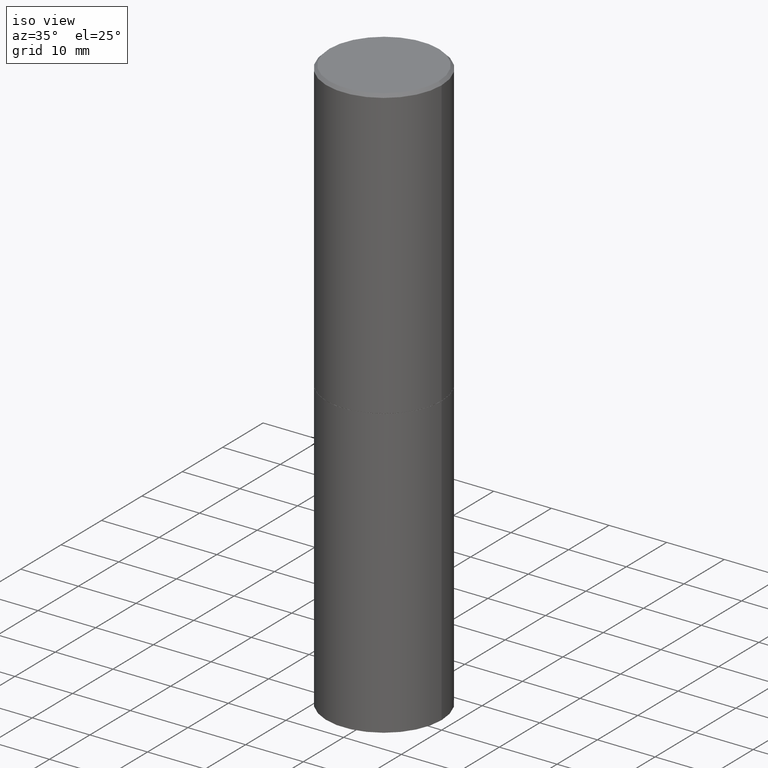
[diagram: clean part render]
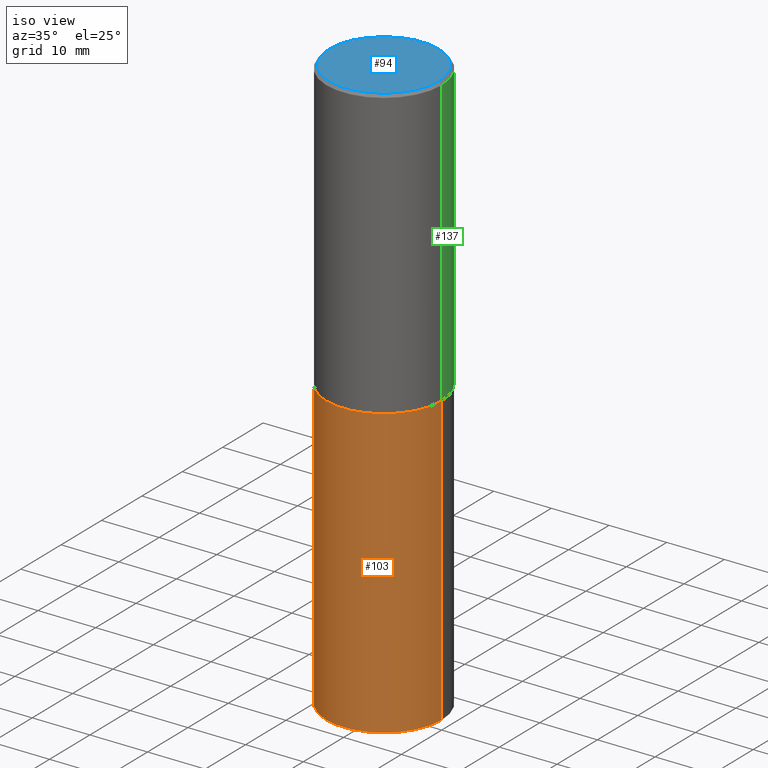
[diagram: same view with three faces highlighted in distinct colors, each labeled with its STEP entity id]
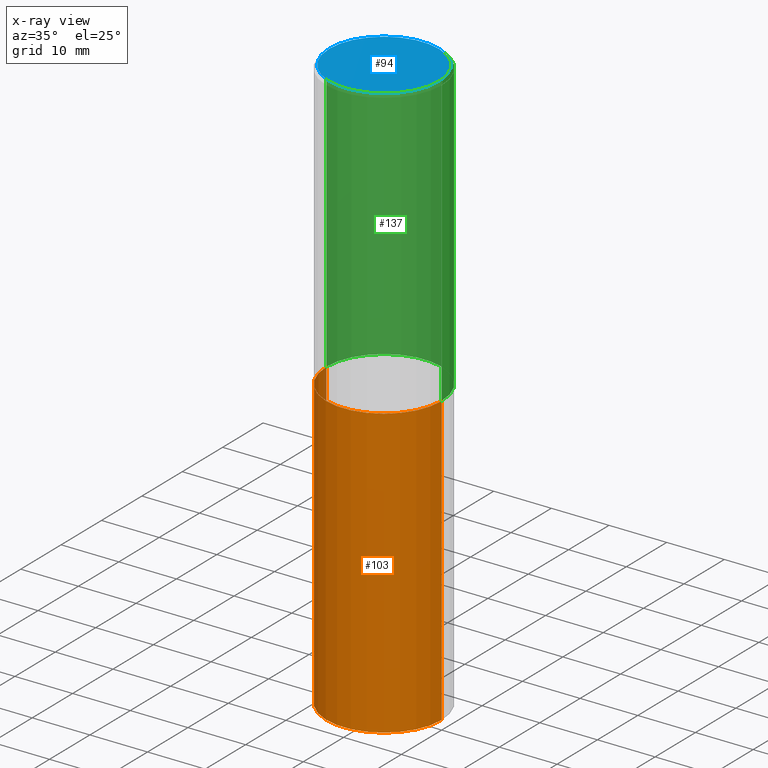
[diagram: x-ray of the same camera — body ghosted, the three highlighted faces saturated]
A machine part, iso view with three faces highlighted in distinct colors.
The next image is the same camera in x-ray (body ghosted, the three faces saturated) — at least one of them is partly hidden behind the body in this view.
Their STEP definitions:

[orange] entity #103 — the highlighted cylindrical surface (partial cylindrical patch) has radius 10 mm, axis along (-0, 0, 1).
#8 = DIRECTION ( 'NONE',  ( -2.445468806185136597E-29, 3.491481338843145583E-15, 1.000000000000000000 ) ) ;
#41 = CARTESIAN_POINT ( 'NONE',  ( 4.813905344975441835E-29, -6.872981015512731707E-15, -1.968500000000000139 ) ) ;
#58 = DIRECTION ( 'NONE',  ( 1.000000000000000000, -6.982962677686265922E-15, 4.876176775795935793E-29 ) ) ;
#62 = DIRECTION ( 'NONE',  ( 1.000000000000000000, -6.982962677686265133E-15, 0.000000000000000000 ) ) ;
#68 = DIRECTION ( 'NONE',  ( -2.445468806185136877E-29, 3.491481338843145188E-15, 1.000000000000000000 ) ) ;
#79 = CIRCLE ( 'NONE', #187, 0.3937000000000000499 ) ;
#83 = CYLINDRICAL_SURFACE ( 'NONE', #128, 0.3937000000000000499 ) ;
#93 = CARTESIAN_POINT ( 'NONE',  ( 0.3937000000000000499, -9.622173421717814924E-15, -1.968500000000000139 ) ) ;
#98 = EDGE_CURVE ( 'NONE', #246, #131, #79, .T. ) ;
#103 = ADVANCED_FACE ( 'NONE', ( #200 ), #83, .T. ) ;
#120 = CARTESIAN_POINT ( 'NONE',  ( 9.627810689950883669E-29, -1.374596203102546341E-14, -3.937000000000000277 ) ) ;
#128 = AXIS2_PLACEMENT_3D ( 'NONE', #171, #191, #58 ) ;
#129 = EDGE_CURVE ( 'NONE', #347, #136, #326, .T. ) ;
#131 = VERTEX_POINT ( 'NONE', #93 ) ;
#136 = VERTEX_POINT ( 'NONE', #318 ) ;
#159 = VECTOR ( 'NONE', #68, 39.37007874015748143 ) ;
#163 = ORIENTED_EDGE ( 'NONE', *, *, #129, .T. ) ;
#164 = EDGE_CURVE ( 'NONE', #347, #246, #349, .T. ) ;
#171 = CARTESIAN_POINT ( 'NONE',  ( 0.000000000000000000, 0.000000000000000000, 0.000000000000000000 ) ) ;
#178 = CARTESIAN_POINT ( 'NONE',  ( -0.3937000000000000499, -7.512064772581583563E-15, -3.937000000000000277 ) ) ;
#187 = AXIS2_PLACEMENT_3D ( 'NONE', #41, #8, #62 ) ;
#191 = DIRECTION ( 'NONE',  ( -2.445468806185136597E-29, 3.491481338843145583E-15, 1.000000000000000000 ) ) ;
#200 = FACE_OUTER_BOUND ( 'NONE', #304, .T. ) ;
#204 = CARTESIAN_POINT ( 'NONE',  ( -0.3937000000000000499, -7.512064772581583563E-15, -1.968500000000000139 ) ) ;
#205 = DIRECTION ( 'NONE',  ( -2.445468806185136877E-29, 3.491481338843145188E-15, 1.000000000000000000 ) ) ;
#209 = ORIENTED_EDGE ( 'NONE', *, *, #98, .F. ) ;
#219 = ORIENTED_EDGE ( 'NONE', *, *, #164, .F. ) ;
#231 = DIRECTION ( 'NONE',  ( -2.445468806185136597E-29, 3.491481338843145583E-15, 1.000000000000000000 ) ) ;
#236 = CARTESIAN_POINT ( 'NONE',  ( -0.3937000000000000499, 2.797406750687514786E-15, -1.936584745033356735E-29 ) ) ;
#246 = VERTEX_POINT ( 'NONE', #204 ) ;
#282 = EDGE_CURVE ( 'NONE', #136, #131, #346, .T. ) ;
#291 = VECTOR ( 'NONE', #205, 39.37007874015748143 ) ;
#304 = EDGE_LOOP ( 'NONE', ( #219, #163, #313, #209 ) ) ;
#313 = ORIENTED_EDGE ( 'NONE', *, *, #282, .T. ) ;
#318 = CARTESIAN_POINT ( 'NONE',  ( 0.3937000000000000499, -1.649515443723054663E-14, -3.937000000000000277 ) ) ;
#321 = CARTESIAN_POINT ( 'NONE',  ( 0.3937000000000000499, -2.749192406205083217E-15, 1.919750796630860172E-29 ) ) ;
#326 = CIRCLE ( 'NONE', #356, 0.3937000000000000499 ) ;
#345 = DIRECTION ( 'NONE',  ( 1.000000000000000000, -6.982962677686267499E-15, 0.000000000000000000 ) ) ;
#346 = LINE ( 'NONE', #321, #159 ) ;
#347 = VERTEX_POINT ( 'NONE', #178 ) ;
#349 = LINE ( 'NONE', #236, #291 ) ;
#356 = AXIS2_PLACEMENT_3D ( 'NONE', #120, #231, #345 ) ;

[blue] entity #94 — the highlighted planar face has unit normal (0, -0, -1).
#6 = PLANE ( 'NONE',  #180 ) ;
#11 = DIRECTION ( 'NONE',  ( 1.000000000000000000, -6.982962677686266711E-15, 4.876212485538977921E-29 ) ) ;
#33 = DIRECTION ( 'NONE',  ( -2.445468806185136597E-29, 3.491481338843145583E-15, 1.000000000000000000 ) ) ;
#49 = CARTESIAN_POINT ( 'NONE',  ( -2.087702828670439639E-46, 2.980686340760894400E-32, 8.537024980200822558E-18 ) ) ;
#57 = ORIENTED_EDGE ( 'NONE', *, *, #189, .T. ) ;
#77 = DIRECTION ( 'NONE',  ( 1.000000000000000000, -6.982962677686266711E-15, 4.876212485538977921E-29 ) ) ;
#87 = CARTESIAN_POINT ( 'NONE',  ( 2.609533152651356226E-15, 0.3736999999999998101, -1.300498063835582617E-15 ) ) ;
#94 = ADVANCED_FACE ( 'NONE', ( #197 ), #6, .F. ) ;
#108 = VERTEX_POINT ( 'NONE', #290 ) ;
#132 = EDGE_LOOP ( 'NONE', ( #277, #57 ) ) ;
#143 = VERTEX_POINT ( 'NONE', #202 ) ;
#179 = DIRECTION ( 'NONE',  ( 2.438088387897960049E-29, -3.491481338843145188E-15, -1.000000000000000000 ) ) ;
#180 = AXIS2_PLACEMENT_3D ( 'NONE', #87, #179, #315 ) ;
#189 = EDGE_CURVE ( 'NONE', #108, #143, #274, .T. ) ;
#197 = FACE_OUTER_BOUND ( 'NONE', #132, .T. ) ;
#202 = CARTESIAN_POINT ( 'NONE',  ( -0.3736999999999998101, 2.644447966039787875E-15, 8.537024980182450727E-18 ) ) ;
#203 = AXIS2_PLACEMENT_3D ( 'NONE', #49, #33, #11 ) ;
#207 = CIRCLE ( 'NONE', #203, 0.3736999999999998101 ) ;
#238 = EDGE_CURVE ( 'NONE', #143, #108, #207, .T. ) ;
#273 = DIRECTION ( 'NONE',  ( -2.445468806185136597E-29, 3.491481338843145583E-15, 1.000000000000000000 ) ) ;
#274 = CIRCLE ( 'NONE', #348, 0.3736999999999998101 ) ;
#277 = ORIENTED_EDGE ( 'NONE', *, *, #238, .T. ) ;
#290 = CARTESIAN_POINT ( 'NONE',  ( 0.3736999999999998101, -2.667287895133366781E-15, 8.537024980219274507E-18 ) ) ;
#306 = CARTESIAN_POINT ( 'NONE',  ( -2.087702828670439639E-46, 2.980686340760894400E-32, 8.537024980200822558E-18 ) ) ;
#315 = DIRECTION ( 'NONE',  ( -1.000000000000000000, 6.982962677686265922E-15, -4.876176775795935793E-29 ) ) ;
#348 = AXIS2_PLACEMENT_3D ( 'NONE', #306, #273, #77 ) ;

[green] entity #137 — the highlighted cylindrical surface (partial cylindrical patch) has radius 10 mm, axis along (-0, 0, 1).
#2 = CARTESIAN_POINT ( 'NONE',  ( -0.3937000000000001609, -6.722528297878588461E-16, -1.967500000000000027 ) ) ;
#3 = AXIS2_PLACEMENT_3D ( 'NONE', #167, #295, #170 ) ;
#10 = VECTOR ( 'NONE', #147, 39.37007874015748143 ) ;
#20 = CARTESIAN_POINT ( 'NONE',  ( -0.3936999999999998279, 2.679362779428218735E-15, -0.02000000000000008715 ) ) ;
#28 = CIRCLE ( 'NONE', #3, 0.3937000000000001609 ) ;
#32 = VERTEX_POINT ( 'NONE', #2 ) ;
#56 = EDGE_LOOP ( 'NONE', ( #111, #355, #102, #362 ) ) ;
#64 = FACE_OUTER_BOUND ( 'NONE', #56, .T. ) ;
#66 = EDGE_CURVE ( 'NONE', #248, #32, #28, .T. ) ;
#84 = EDGE_CURVE ( 'NONE', #32, #186, #96, .T. ) ;
#91 = CARTESIAN_POINT ( 'NONE',  ( -0.3936999999999999389, 2.797406750687513998E-15, -1.936584745033356455E-29 ) ) ;
#96 = LINE ( 'NONE', #91, #268 ) ;
#102 = ORIENTED_EDGE ( 'NONE', *, *, #254, .F. ) ;
#111 = ORIENTED_EDGE ( 'NONE', *, *, #66, .T. ) ;
#137 = ADVANCED_FACE ( 'NONE', ( #64 ), #233, .T. ) ;
#141 = AXIS2_PLACEMENT_3D ( 'NONE', #335, #293, #152 ) ;
#147 = DIRECTION ( 'NONE',  ( -2.445468806185136877E-29, 3.491481338843145188E-15, 1.000000000000000000 ) ) ;
#152 = DIRECTION ( 'NONE',  ( 1.000000000000000000, -6.982962677686266711E-15, 4.876176775795935793E-29 ) ) ;
#167 = CARTESIAN_POINT ( 'NONE',  ( 4.811459876169256232E-29, -6.869489534173888700E-15, -1.967500000000000027 ) ) ;
#168 = CARTESIAN_POINT ( 'NONE',  ( 0.3937000000000001609, -9.618681940378971917E-15, -1.967500000000000027 ) ) ;
#170 = DIRECTION ( 'NONE',  ( 1.000000000000000000, -6.982962677686265922E-15, 0.000000000000000000 ) ) ;
#186 = VERTEX_POINT ( 'NONE', #20 ) ;
#198 = CARTESIAN_POINT ( 'NONE',  ( 4.890937612370294178E-31, -6.982962677686321191E-17, -0.02000000000000008715 ) ) ;
#224 = DIRECTION ( 'NONE',  ( -2.445468806185136877E-29, 3.491481338843145188E-15, 1.000000000000000000 ) ) ;
#233 = CYLINDRICAL_SURFACE ( 'NONE', #141, 0.3936999999999999389 ) ;
#235 = DIRECTION ( 'NONE',  ( -2.445468806185136597E-29, 3.491481338843145583E-15, 1.000000000000000000 ) ) ;
#248 = VERTEX_POINT ( 'NONE', #168 ) ;
#254 = EDGE_CURVE ( 'NONE', #278, #186, #297, .T. ) ;
#262 = DIRECTION ( 'NONE',  ( 1.000000000000000000, -6.982962677686266711E-15, 0.000000000000000000 ) ) ;
#268 = VECTOR ( 'NONE', #224, 39.37007874015748143 ) ;
#278 = VERTEX_POINT ( 'NONE', #285 ) ;
#285 = CARTESIAN_POINT ( 'NONE',  ( 0.3936999999999998279, -2.770807688499514156E-15, -0.02000000000000008715 ) ) ;
#293 = DIRECTION ( 'NONE',  ( -2.445468806185136597E-29, 3.491481338843145583E-15, 1.000000000000000000 ) ) ;
#295 = DIRECTION ( 'NONE',  ( -2.445468806185136597E-29, 3.491481338843145583E-15, 1.000000000000000000 ) ) ;
#297 = CIRCLE ( 'NONE', #352, 0.3936999999999998279 ) ;
#299 = EDGE_CURVE ( 'NONE', #248, #278, #312, .T. ) ;
#312 = LINE ( 'NONE', #351, #10 ) ;
#335 = CARTESIAN_POINT ( 'NONE',  ( 0.000000000000000000, 0.000000000000000000, 0.000000000000000000 ) ) ;
#351 = CARTESIAN_POINT ( 'NONE',  ( 0.3936999999999999389, -2.749192406205082822E-15, 1.919750796630859611E-29 ) ) ;
#352 = AXIS2_PLACEMENT_3D ( 'NONE', #198, #235, #262 ) ;
#355 = ORIENTED_EDGE ( 'NONE', *, *, #84, .T. ) ;
#362 = ORIENTED_EDGE ( 'NONE', *, *, #299, .F. ) ;